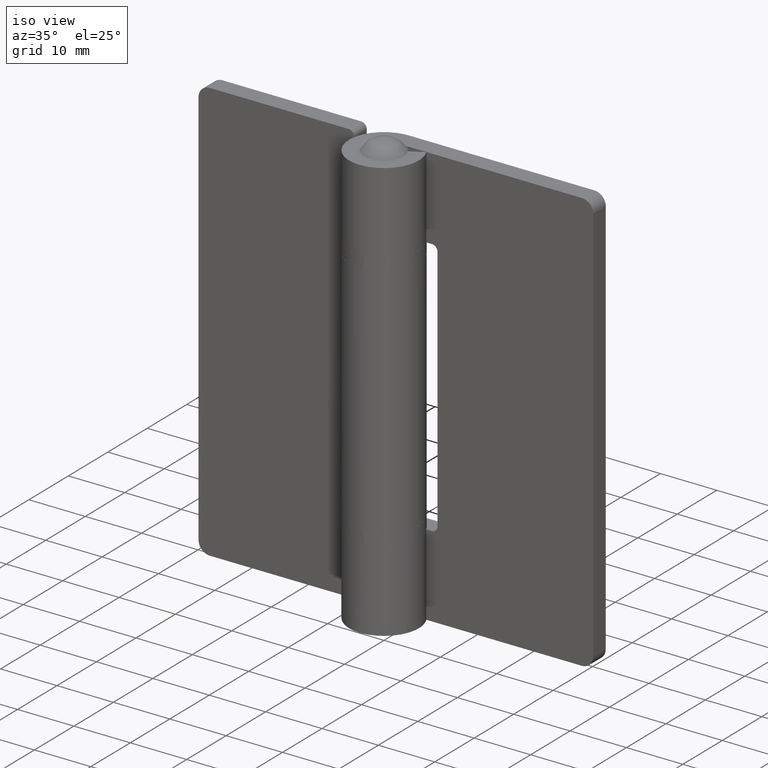
[diagram: clean part render]
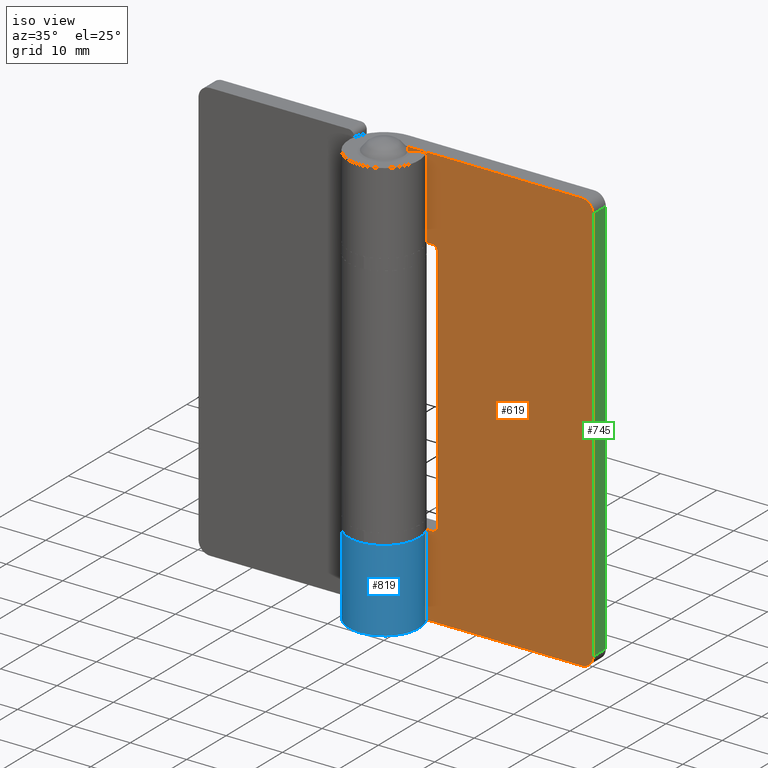
[diagram: same view with three faces highlighted in distinct colors, each labeled with its STEP entity id]
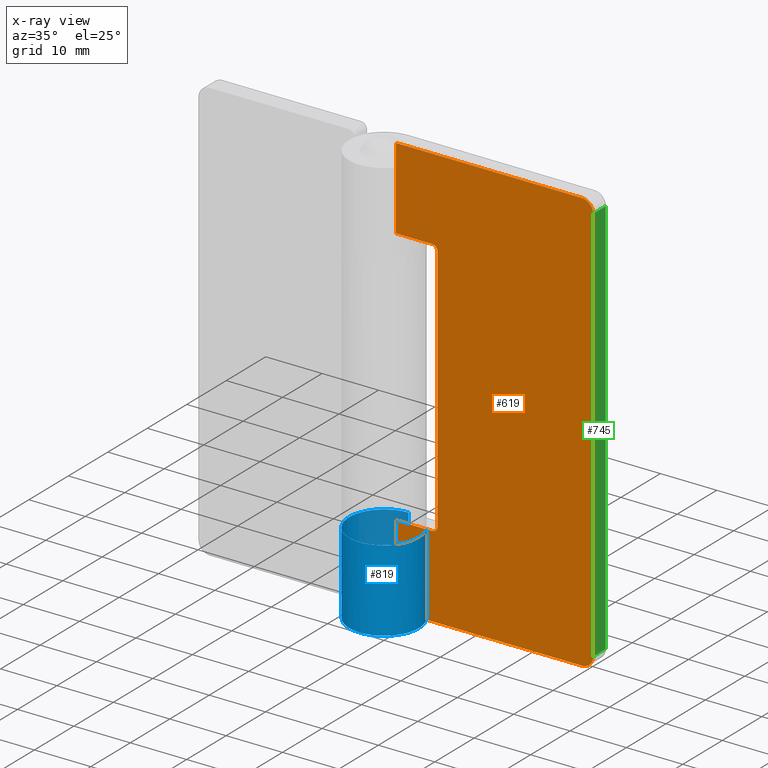
[diagram: x-ray of the same camera — body ghosted, the three highlighted faces saturated]
A machine part, iso view with three faces highlighted in distinct colors.
The next image is the same camera in x-ray (body ghosted, the three faces saturated) — at least one of them is partly hidden behind the body in this view.
Their STEP definitions:

[orange] entity #619 — the highlighted face is a freeform B-spline surface patch.
#58=CARTESIAN_POINT('',(6.400000999999900,3.0,60.500000000000000));
#59=VERTEX_POINT('',#58);
#60=CARTESIAN_POINT('',(7.400000999999900,3.0,59.500000000000000));
#61=VERTEX_POINT('',#60);
#62=CARTESIAN_POINT('',(6.400000999999900,3.0,60.500000000000000));
#63=CARTESIAN_POINT('',(7.400000999999901,3.0,60.500000000000000));
#64=CARTESIAN_POINT('',(7.400000999999900,3.0,59.500000000000000));
#72=(BOUNDED_CURVE()B_SPLINE_CURVE(2,(#62,#63,#64),.UNSPECIFIED.,.F.,.U.)CURVE()GEOMETRIC_REPRESENTATION_ITEM()QUASI_UNIFORM_CURVE()RATIONAL_B_SPLINE_CURVE((1.0,0.707106781186548,1.0))REPRESENTATION_ITEM(''));
#73=EDGE_CURVE('',#59,#61,#72,.T.);
#119=CARTESIAN_POINT('',(7.400000999999900,3.0,15.500000000000000));
#120=VERTEX_POINT('',#119);
#121=CARTESIAN_POINT('',(6.400000999999900,3.0,14.499999999999840));
#122=VERTEX_POINT('',#121);
#123=CARTESIAN_POINT('',(7.400000999999900,3.0,15.500000000000000));
#124=CARTESIAN_POINT('',(7.400000999999901,3.0,14.500000000000000));
#125=CARTESIAN_POINT('',(6.400000999999900,3.0,14.499999999999840));
#133=(BOUNDED_CURVE()B_SPLINE_CURVE(2,(#123,#124,#125),.UNSPECIFIED.,.F.,.U.)CURVE()GEOMETRIC_REPRESENTATION_ITEM()QUASI_UNIFORM_CURVE()RATIONAL_B_SPLINE_CURVE((1.0,0.707106781186548,1.0))REPRESENTATION_ITEM(''));
#134=EDGE_CURVE('',#120,#122,#133,.T.);
#180=CARTESIAN_POINT('',(34.999983999999891,3.0,73.0));
#181=VERTEX_POINT('',#180);
#182=CARTESIAN_POINT('',(32.999983999999898,3.0,75.0));
#183=VERTEX_POINT('',#182);
#184=CARTESIAN_POINT('',(34.999983999999898,3.0,73.0));
#185=CARTESIAN_POINT('',(34.999983999999905,3.0,75.000000000000014));
#186=CARTESIAN_POINT('',(32.999983999999898,3.0,75.0));
#194=(BOUNDED_CURVE()B_SPLINE_CURVE(2,(#184,#185,#186),.UNSPECIFIED.,.F.,.U.)CURVE()GEOMETRIC_REPRESENTATION_ITEM()QUASI_UNIFORM_CURVE()RATIONAL_B_SPLINE_CURVE((1.0,0.707106781186548,1.0))REPRESENTATION_ITEM(''));
#195=EDGE_CURVE('',#181,#183,#194,.T.);
#241=CARTESIAN_POINT('',(32.999983999999898,3.0,0.0));
#242=VERTEX_POINT('',#241);
#243=CARTESIAN_POINT('',(34.999983999999891,3.0,2.0));
#244=VERTEX_POINT('',#243);
#245=CARTESIAN_POINT('',(32.999983999999898,3.0,0.0));
#246=CARTESIAN_POINT('',(34.999983999999905,3.0,0.0));
#247=CARTESIAN_POINT('',(34.999983999999898,3.0,2.0));
#255=(BOUNDED_CURVE()B_SPLINE_CURVE(2,(#245,#246,#247),.UNSPECIFIED.,.F.,.U.)CURVE()GEOMETRIC_REPRESENTATION_ITEM()QUASI_UNIFORM_CURVE()RATIONAL_B_SPLINE_CURVE((1.0,0.707106781186548,1.0))REPRESENTATION_ITEM(''));
#256=EDGE_CURVE('',#242,#244,#255,.T.);
#293=CARTESIAN_POINT('',(-5.510729E-016,3.0,14.499999999999840));
#294=VERTEX_POINT('',#293);
#295=CARTESIAN_POINT('',(6.400000999999900,3.0,14.499999999999840));
#296=CARTESIAN_POINT('',(-5.510729E-016,3.0,14.499999999999840));
#297=QUASI_UNIFORM_CURVE('',1,(#295,#296),.UNSPECIFIED.,.F.,.U.);
#298=EDGE_CURVE('',#122,#294,#297,.T.);
#371=CARTESIAN_POINT('',(-5.510743E-016,3.0,60.500000000000000));
#372=VERTEX_POINT('',#371);
#373=CARTESIAN_POINT('',(-5.510743E-016,3.0,60.500000000000000));
#374=CARTESIAN_POINT('',(6.400000999999900,3.0,60.500000000000000));
#375=QUASI_UNIFORM_CURVE('',1,(#373,#374),.UNSPECIFIED.,.F.,.U.);
#376=EDGE_CURVE('',#372,#59,#375,.T.);
#439=CARTESIAN_POINT('',(7.400000999999900,3.0,59.500000000000000));
#440=CARTESIAN_POINT('',(7.400000999999900,3.0,15.500000000000000));
#441=QUASI_UNIFORM_CURVE('',1,(#439,#440),.UNSPECIFIED.,.F.,.U.);
#442=EDGE_CURVE('',#61,#120,#441,.T.);
#461=CARTESIAN_POINT('',(-5.510729E-016,3.0,0.0));
#462=VERTEX_POINT('',#461);
#463=CARTESIAN_POINT('',(-5.510729E-016,3.0,0.0));
#464=CARTESIAN_POINT('',(32.999983999999898,3.0,0.0));
#465=QUASI_UNIFORM_CURVE('',1,(#463,#464),.UNSPECIFIED.,.F.,.U.);
#466=EDGE_CURVE('',#462,#242,#465,.T.);
#523=CARTESIAN_POINT('',(-5.510729E-016,3.0,75.0));
#524=VERTEX_POINT('',#523);
#525=CARTESIAN_POINT('',(-5.510729E-016,3.0,75.0));
#526=CARTESIAN_POINT('',(32.999983999999898,3.0,75.0));
#527=QUASI_UNIFORM_CURVE('',1,(#525,#526),.UNSPECIFIED.,.F.,.U.);
#528=EDGE_CURVE('',#524,#183,#527,.T.);
#588=CARTESIAN_POINT('',(-1.748249132963234,3.0,-3.746249854635448));
#589=CARTESIAN_POINT('',(-1.748249132963234,3.0,78.746251866292212));
#590=CARTESIAN_POINT('',(36.748234071735872,3.0,-3.746249854635448));
#591=CARTESIAN_POINT('',(36.748234071735872,3.0,78.746251866292212));
#592=B_SPLINE_SURFACE_WITH_KNOTS('',1,1,((#588,#590),(#589,#591)),.UNSPECIFIED.,.F.,.F.,.U.,(2,2),(2,2),(0.0,82.492501720927663),(0.0,38.496483204699103),.UNSPECIFIED.);
#593=ORIENTED_EDGE('',*,*,#466,.T.);
#594=ORIENTED_EDGE('',*,*,#256,.T.);
#595=CARTESIAN_POINT('',(34.999983999999891,3.0,73.0));
#596=CARTESIAN_POINT('',(34.999983999999891,3.0,2.0));
#597=QUASI_UNIFORM_CURVE('',1,(#595,#596),.UNSPECIFIED.,.F.,.U.);
#598=EDGE_CURVE('',#181,#244,#597,.T.);
#599=ORIENTED_EDGE('',*,*,#598,.F.);
#600=ORIENTED_EDGE('',*,*,#195,.T.);
#601=ORIENTED_EDGE('',*,*,#528,.F.);
#602=CARTESIAN_POINT('',(-5.510729E-016,3.0,75.0));
#603=CARTESIAN_POINT('',(-5.510743E-016,3.0,60.500000000000000));
#604=QUASI_UNIFORM_CURVE('',1,(#602,#603),.UNSPECIFIED.,.F.,.U.);
#605=EDGE_CURVE('',#524,#372,#604,.T.);
#606=ORIENTED_EDGE('',*,*,#605,.T.);
#607=ORIENTED_EDGE('',*,*,#376,.T.);
#608=ORIENTED_EDGE('',*,*,#73,.T.);
#609=ORIENTED_EDGE('',*,*,#442,.T.);
#610=ORIENTED_EDGE('',*,*,#134,.T.);
#611=ORIENTED_EDGE('',*,*,#298,.T.);
#612=CARTESIAN_POINT('',(-5.510729E-016,3.0,14.499999999999840));
#613=CARTESIAN_POINT('',(-5.510729E-016,3.0,0.0));
#614=QUASI_UNIFORM_CURVE('',1,(#612,#613),.UNSPECIFIED.,.F.,.U.);
#615=EDGE_CURVE('',#294,#462,#614,.T.);
#616=ORIENTED_EDGE('',*,*,#615,.T.);
#617=EDGE_LOOP('',(#593,#594,#599,#600,#601,#606,#607,#608,#609,#610,#611,#616));
#618=FACE_OUTER_BOUND('',#617,.T.);
#619=ADVANCED_FACE('',(#618),#592,.F.);

[blue] entity #819 — the highlighted face is a freeform B-spline surface patch.
#301=CARTESIAN_POINT('',(0.0,6.200001000000000,14.500000000000000));
#302=VERTEX_POINT('',#301);
#308=CARTESIAN_POINT('',(5.453211200751440,2.950000000000000,14.499999999999840));
#309=VERTEX_POINT('',#308);
#310=CARTESIAN_POINT('',(0.0,6.200001000000000,14.500000000000000));
#311=CARTESIAN_POINT('',(-4.723388714660267,6.200001000000001,14.499999999999837));
#312=CARTESIAN_POINT('',(-5.977477707556045,1.646138710944958,14.499999999999840));
#313=CARTESIAN_POINT('',(-7.231566700451824,-2.907723578110086,14.499999999999837));
#314=CARTESIAN_POINT('',(-3.174114793922945,-5.325880929480165,14.499999999999840));
#315=CARTESIAN_POINT('',(0.883337112605933,-7.744038280850243,14.499999999999837));
#316=CARTESIAN_POINT('',(4.291983387390730,-4.474247534766375,14.499999999999840));
#317=CARTESIAN_POINT('',(7.700629662175529,-1.204456788682506,14.499999999999837));
#318=CARTESIAN_POINT('',(5.453211200751443,2.950000000000001,14.499999999999840));
#326=(BOUNDED_CURVE()B_SPLINE_CURVE(2,(#310,#311,#312,#313,#314,#315,#316,#317,#318),.UNSPECIFIED.,.F.,.U.)B_SPLINE_CURVE_WITH_KNOTS((3,2,2,2,3),(0.0,0.250000000000000,0.500000000000000,0.750000000000000,1.0),.UNSPECIFIED.)CURVE()GEOMETRIC_REPRESENTATION_ITEM()RATIONAL_B_SPLINE_CURVE((1.0,0.795457792996341,1.0,0.795457792996341,1.0,0.795457792996341,1.0,0.795457792996341,1.0))REPRESENTATION_ITEM(''));
#327=EDGE_CURVE('',#302,#309,#326,.T.);
#453=CARTESIAN_POINT('',(0.0,6.200001000000000,0.0));
#454=VERTEX_POINT('',#453);
#489=CARTESIAN_POINT('',(5.453211200751440,2.950000000000000,0.0));
#490=VERTEX_POINT('',#489);
#496=CARTESIAN_POINT('',(5.453211200751441,2.950000000000004,0.0));
#497=CARTESIAN_POINT('',(7.700629662175530,-1.204456788682503,0.0));
#498=CARTESIAN_POINT('',(4.291983387390734,-4.474247534766374,0.0));
#499=CARTESIAN_POINT('',(0.883337112605939,-7.744038280850243,0.0));
#500=CARTESIAN_POINT('',(-3.174114793922942,-5.325880929480166,0.0));
#501=CARTESIAN_POINT('',(-7.231566700451820,-2.907723578110089,0.0));
#502=CARTESIAN_POINT('',(-5.977477707556046,1.646138710944954,0.0));
#503=CARTESIAN_POINT('',(-4.723388714660271,6.200001000000000,0.0));
#504=CARTESIAN_POINT('',(0.0,6.200001000000000,0.0));
#512=(BOUNDED_CURVE()B_SPLINE_CURVE(2,(#496,#497,#498,#499,#500,#501,#502,#503,#504),.UNSPECIFIED.,.F.,.U.)B_SPLINE_CURVE_WITH_KNOTS((3,2,2,2,3),(0.0,0.250000000000000,0.500000000000000,0.750000000000000,1.0),.UNSPECIFIED.)CURVE()GEOMETRIC_REPRESENTATION_ITEM()RATIONAL_B_SPLINE_CURVE((1.0,0.795457792996341,1.0,0.795457792996341,1.0,0.795457792996341,1.0,0.795457792996341,1.0))REPRESENTATION_ITEM(''));
#513=EDGE_CURVE('',#490,#454,#512,.T.);
#660=CARTESIAN_POINT('',(5.453211200751440,2.950000000000000,14.499999999999840));
#661=CARTESIAN_POINT('',(5.453211200751440,2.950000000000000,0.0));
#662=QUASI_UNIFORM_CURVE('',1,(#660,#661),.UNSPECIFIED.,.F.,.U.);
#663=EDGE_CURVE('',#309,#490,#662,.T.);
#718=CARTESIAN_POINT('',(0.0,6.200001000000000,14.500000000000000));
#719=CARTESIAN_POINT('',(0.0,6.200001000000000,0.0));
#720=QUASI_UNIFORM_CURVE('',1,(#718,#719),.UNSPECIFIED.,.F.,.U.);
#721=EDGE_CURVE('',#302,#454,#720,.T.);
#791=CARTESIAN_POINT('',(0.225907862405861,6.195883959347866,14.862500000000001));
#792=CARTESIAN_POINT('',(0.225907862405861,6.195883959347866,-0.371562500000000));
#793=CARTESIAN_POINT('',(-7.380026586253624,6.473203612874208,14.862499999999999));
#794=CARTESIAN_POINT('',(-7.380026586253624,6.473203612874208,-0.371562500000000));
#795=CARTESIAN_POINT('',(-6.113563388641380,-1.031675866280058,14.862500000000001));
#796=CARTESIAN_POINT('',(-6.113563388641380,-1.031675866280058,-0.371562500000000));
#797=CARTESIAN_POINT('',(-4.847100191029136,-8.536555345434325,14.862499999999999));
#798=CARTESIAN_POINT('',(-4.847100191029136,-8.536555345434325,-0.371562500000000));
#799=CARTESIAN_POINT('',(2.246632031092315,-5.778637981122455,14.862500000000001));
#800=CARTESIAN_POINT('',(2.246632031092315,-5.778637981122455,-0.371562500000000));
#801=CARTESIAN_POINT('',(9.340364253213766,-3.020720616810584,14.862499999999999));
#802=CARTESIAN_POINT('',(9.340364253213766,-3.020720616810584,-0.371562500000000));
#803=CARTESIAN_POINT('',(5.204946438139612,3.368760154136644,14.862500000000001));
#804=CARTESIAN_POINT('',(5.204946438139612,3.368760154136644,-0.371562500000000));
#812=(BOUNDED_SURFACE()B_SPLINE_SURFACE(1,2,((#791,#793,#795,#797,#799,#801,#803),(#792,#794,#796,#798,#800,#802,#804)),.UNSPECIFIED.,.F.,.F.,.U.)B_SPLINE_SURFACE_WITH_KNOTS((2,2),(3,2,2,3),(0.0,15.234062500000000),(0.0,11.784749476774421,23.569498953548841,35.354248430323260),.UNSPECIFIED.)GEOMETRIC_REPRESENTATION_ITEM()RATIONAL_B_SPLINE_SURFACE(((1.0,0.631578351302498,1.0,0.631578351302498,1.0,0.631578351302498,1.0),(1.0,0.631578351302498,1.0,0.631578351302498,1.0,0.631578351302498,1.0)))REPRESENTATION_ITEM('')SURFACE());
#813=ORIENTED_EDGE('',*,*,#663,.F.);
#814=ORIENTED_EDGE('',*,*,#327,.F.);
#815=ORIENTED_EDGE('',*,*,#721,.T.);
#816=ORIENTED_EDGE('',*,*,#513,.F.);
#817=EDGE_LOOP('',(#813,#814,#815,#816));
#818=FACE_OUTER_BOUND('',#817,.T.);
#819=ADVANCED_FACE('',(#818),#812,.T.);

[green] entity #745 — the highlighted face is a freeform B-spline surface patch.
#180=CARTESIAN_POINT('',(34.999983999999891,3.0,73.0));
#181=VERTEX_POINT('',#180);
#197=CARTESIAN_POINT('',(34.999983999999891,6.200001000000000,73.0));
#198=VERTEX_POINT('',#197);
#199=CARTESIAN_POINT('',(34.999983999999891,6.200001000000000,73.0));
#200=CARTESIAN_POINT('',(34.999983999999891,3.0,73.0));
#201=QUASI_UNIFORM_CURVE('',1,(#199,#200),.UNSPECIFIED.,.F.,.U.);
#202=EDGE_CURVE('',#198,#181,#201,.T.);
#243=CARTESIAN_POINT('',(34.999983999999891,3.0,2.0));
#244=VERTEX_POINT('',#243);
#265=CARTESIAN_POINT('',(34.999983999999891,6.200001000000000,2.0));
#266=VERTEX_POINT('',#265);
#280=CARTESIAN_POINT('',(34.999983999999891,3.0,2.0));
#281=CARTESIAN_POINT('',(34.999983999999891,6.200001000000000,2.0));
#282=QUASI_UNIFORM_CURVE('',1,(#280,#281),.UNSPECIFIED.,.F.,.U.);
#283=EDGE_CURVE('',#244,#266,#282,.T.);
#595=CARTESIAN_POINT('',(34.999983999999891,3.0,73.0));
#596=CARTESIAN_POINT('',(34.999983999999891,3.0,2.0));
#597=QUASI_UNIFORM_CURVE('',1,(#595,#596),.UNSPECIFIED.,.F.,.U.);
#598=EDGE_CURVE('',#181,#244,#597,.T.);
#711=CARTESIAN_POINT('',(34.999983999999891,6.200001000000000,73.0));
#712=CARTESIAN_POINT('',(34.999983999999891,6.200001000000000,2.0));
#713=QUASI_UNIFORM_CURVE('',1,(#711,#712),.UNSPECIFIED.,.F.,.U.);
#714=EDGE_CURVE('',#198,#266,#713,.T.);
#734=CARTESIAN_POINT('',(34.999983999999877,2.840159967684873,-1.546449862388226));
#735=CARTESIAN_POINT('',(34.999983999999877,2.840159967684873,76.546451766756618));
#736=CARTESIAN_POINT('',(34.999983999999891,6.359840889263936,-1.546449862388226));
#737=CARTESIAN_POINT('',(34.999983999999891,6.359840889263936,76.546451766756618));
#738=B_SPLINE_SURFACE_WITH_KNOTS('',1,1,((#734,#736),(#735,#737)),.UNSPECIFIED.,.F.,.F.,.U.,(2,2),(2,2),(0.0,78.092901629144848),(0.0,3.519680921579062),.UNSPECIFIED.);
#739=ORIENTED_EDGE('',*,*,#598,.T.);
#740=ORIENTED_EDGE('',*,*,#283,.T.);
#741=ORIENTED_EDGE('',*,*,#714,.F.);
#742=ORIENTED_EDGE('',*,*,#202,.T.);
#743=EDGE_LOOP('',(#739,#740,#741,#742));
#744=FACE_OUTER_BOUND('',#743,.T.);
#745=ADVANCED_FACE('',(#744),#738,.F.);